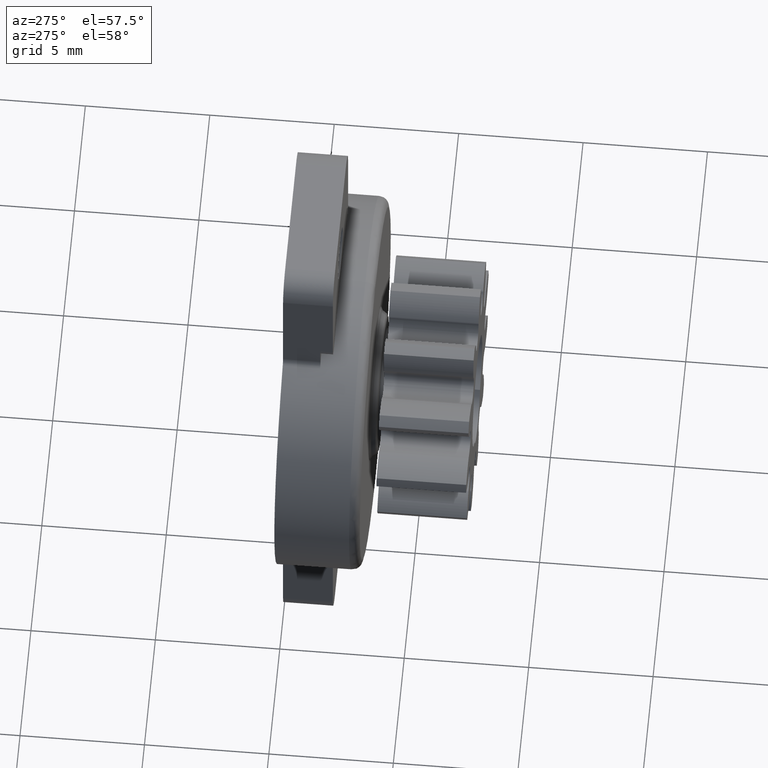
[diagram: clean part render]
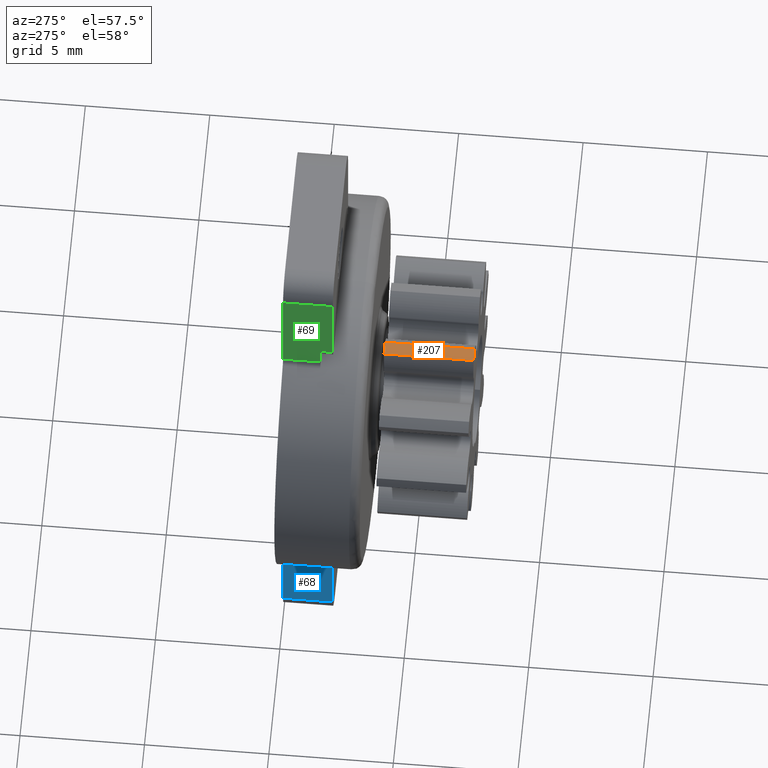
[diagram: same view with three faces highlighted in distinct colors, each labeled with its STEP entity id]
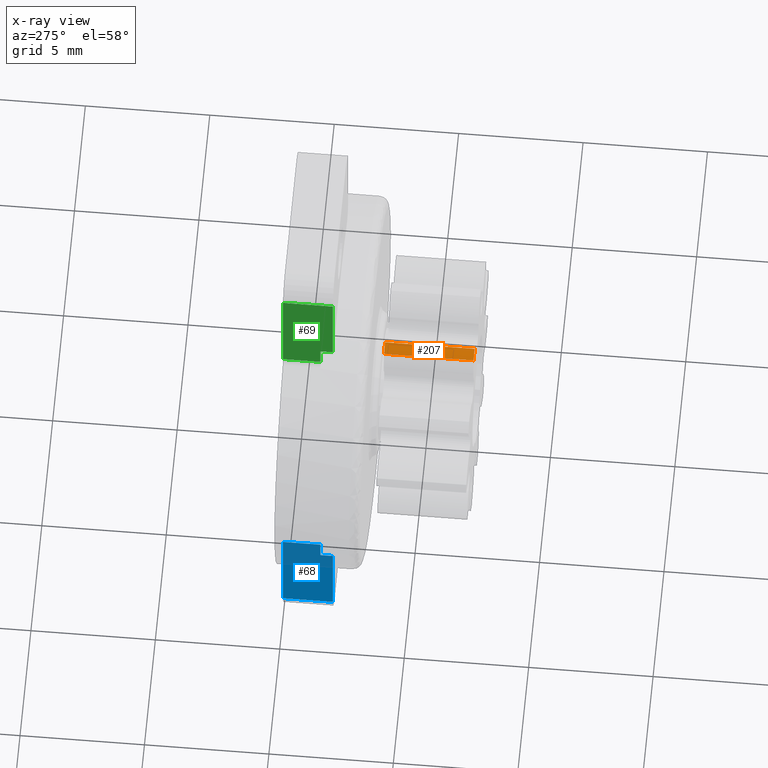
[diagram: x-ray of the same camera — body ghosted, the three highlighted faces saturated]
A machine part, auxiliary view with three faces highlighted in distinct colors.
The next image is the same camera in x-ray (body ghosted, the three faces saturated) — at least one of them is partly hidden behind the body in this view.
Their STEP definitions:

[orange] entity #207 — the highlighted cylindrical surface (partial cylindrical patch) has radius 5.2 mm, axis along (-0, -1, -0).
#207=ADVANCED_FACE('',(#2361),#2360,.T.);
#2360=CYLINDRICAL_SURFACE('',#7976,5.20000049591E+00);
#2361=FACE_OUTER_BOUND('',#7977,.T.);
#7973=CARTESIAN_POINT('',(0.00000000000E+00,-1.00390000000E+03,0.00000000000E+00));
#7974=DIRECTION('',(-0.00000000000E+00,-1.00000000000E+00,-0.00000000000E+00));
#7975=DIRECTION('',(-0.00000000000E+00,0.00000000000E+00,-1.00000000000E+00));
#7976=AXIS2_PLACEMENT_3D('',#7973,#7974,#7975);
#7977=EDGE_LOOP('',(#11176,#11177,#11178,#11179));
#11176=ORIENTED_EDGE('',*,*,#14782,.T.);
#11177=ORIENTED_EDGE('',*,*,#14781,.F.);
#11178=ORIENTED_EDGE('',*,*,#14783,.F.);
#11179=ORIENTED_EDGE('',*,*,#14784,.T.);
#14781=EDGE_CURVE('',#19563,#19556,#19570,.T.);
#14782=EDGE_CURVE('',#19576,#19556,#19577,.T.);
#14783=EDGE_CURVE('',#19583,#19563,#19584,.T.);
#14784=EDGE_CURVE('',#19583,#19576,#19590,.T.);
#19556=VERTEX_POINT('',#30831);
#19563=VERTEX_POINT('',#30835);
#19570=LINE('',#30839,#30840);
#19576=VERTEX_POINT('',#30842);
#19577=CIRCLE('',#30846,5.20000049591E+00);
#19583=VERTEX_POINT('',#30847);
#19584=CIRCLE('',#30851,5.20000049591E+00);
#19590=LINE('',#30852,#30853);
#30831=CARTESIAN_POINT('',(-1.69574860520E+00,-3.90000000000E+00,4.91573410850E+00));
#30835=CARTESIAN_POINT('',(-1.69574860520E+00,-7.50000000000E+00,4.91573410850E+00));
#30839=CARTESIAN_POINT('',(-1.69574860520E+00,-7.50000000000E+00,4.91573410850E+00));
#30840=VECTOR('',#30841,3.60000000000E+00);
#30841=DIRECTION('',(0.00000000000E+00,1.00000000000E+00,0.00000000000E+00));
#30842=CARTESIAN_POINT('',(-1.23109120000E+00,-3.90000000000E+00,5.05216980000E+00));
#30843=CARTESIAN_POINT('',(0.00000000000E+00,-3.90000000000E+00,0.00000000000E+00));
#30844=DIRECTION('',(0.00000000000E+00,-1.00000000000E+00,0.00000000000E+00));
#30845=DIRECTION('',(-0.00000000000E+00,-0.00000000000E+00,1.00000000000E+00));
#30846=AXIS2_PLACEMENT_3D('',#30843,#30844,#30845);
#30847=CARTESIAN_POINT('',(-1.23109120000E+00,-7.50000000000E+00,5.05216980000E+00));
#30848=CARTESIAN_POINT('',(0.00000000000E+00,-7.50000000000E+00,0.00000000000E+00));
#30849=DIRECTION('',(0.00000000000E+00,-1.00000000000E+00,0.00000000000E+00));
#30850=DIRECTION('',(-0.00000000000E+00,-0.00000000000E+00,1.00000000000E+00));
#30851=AXIS2_PLACEMENT_3D('',#30848,#30849,#30850);
#30852=CARTESIAN_POINT('',(-1.23109120000E+00,-7.50000000000E+00,5.05216980000E+00));
#30853=VECTOR('',#30854,3.60000000000E+00);
#30854=DIRECTION('',(0.00000000000E+00,1.00000000000E+00,0.00000000000E+00));

[blue] entity #68 — the highlighted planar face has unit normal (-1, 0, 0).
#68=ADVANCED_FACE('',(#971),#970,.T.);
#970=PLANE('',#7281);
#971=FACE_OUTER_BOUND('',#7282,.T.);
#7278=CARTESIAN_POINT('',(-3.50000000000E+00,-2.20000000000E+00,-1.14188244635E+01));
#7279=DIRECTION('',(-1.00000000000E+00,0.00000000000E+00,0.00000000000E+00));
#7280=DIRECTION('',(0.00000000000E+00,0.00000000000E+00,1.00000000000E+00));
#7281=AXIS2_PLACEMENT_3D('',#7278,#7279,#7280);
#7282=EDGE_LOOP('',(#10616,#10617,#10618,#10619,#10620,#10621));
#10616=ORIENTED_EDGE('',*,*,#14306,.F.);
#10617=ORIENTED_EDGE('',*,*,#14356,.T.);
#10618=ORIENTED_EDGE('',*,*,#14337,.T.);
#10619=ORIENTED_EDGE('',*,*,#14371,.T.);
#10620=ORIENTED_EDGE('',*,*,#14284,.F.);
#10621=ORIENTED_EDGE('',*,*,#14301,.F.);
#14284=EDGE_CURVE('',#16252,#16253,#16254,.T.);
#14301=EDGE_CURVE('',#16363,#16252,#16370,.T.);
#14306=EDGE_CURVE('',#16398,#16363,#16405,.T.);
#14337=EDGE_CURVE('',#16616,#16609,#16617,.T.);
#14356=EDGE_CURVE('',#16398,#16616,#16744,.T.);
#14371=EDGE_CURVE('',#16609,#16253,#16834,.T.);
#16252=VERTEX_POINT('',#28947);
#16253=VERTEX_POINT('',#28948);
#16254=LINE('',#28949,#28950);
#16363=VERTEX_POINT('',#29018);
#16370=LINE('',#29023,#29024);
#16398=VERTEX_POINT('',#29042);
#16405=LINE('',#29047,#29048);
#16609=VERTEX_POINT('',#29178);
#16616=VERTEX_POINT('',#29183);
#16617=LINE('',#29184,#29185);
#16744=LINE('',#29266,#29267);
#16834=LINE('',#29311,#29312);
#28947=CARTESIAN_POINT('',(-3.50000000000E+00,-2.00000000000E+00,-7.58711560000E+00));
#28948=CARTESIAN_POINT('',(-3.50000009537E+00,-2.00000000000E+00,-1.09999999476E+01));
#28949=CARTESIAN_POINT('',(-3.50000000000E+00,-2.00000000000E+00,-7.58711560000E+00));
#28950=VECTOR('',#28951,3.41288434764E+00);
#28951=DIRECTION('',(0.00000000000E+00,0.00000000000E+00,-1.00000000000E+00));
#29018=CARTESIAN_POINT('',(-3.50000000000E+00,-1.50000000000E+00,-7.58711560000E+00));
#29023=CARTESIAN_POINT('',(-3.50000000000E+00,-1.50000000000E+00,-7.58711560000E+00));
#29024=VECTOR('',#29025,5.00000000000E-01);
#29025=DIRECTION('',(0.00000000000E+00,-1.00000000000E+00,0.00000000000E+00));
#29042=CARTESIAN_POINT('',(-3.50000000000E+00,-1.50000000000E+00,-6.81175536540E+00));
#29047=CARTESIAN_POINT('',(-3.50000000000E+00,-1.50000000000E+00,-6.81175536540E+00));
#29048=VECTOR('',#29049,7.75360234605E-01);
#29049=DIRECTION('',(0.00000000000E+00,0.00000000000E+00,-1.00000000000E+00));
#29178=CARTESIAN_POINT('',(-3.50000000000E+00,0.00000000000E+00,-1.10000000000E+01));
#29183=CARTESIAN_POINT('',(-3.50000000000E+00,0.00000000000E+00,-6.81175536540E+00));
#29184=CARTESIAN_POINT('',(-3.50000000000E+00,0.00000000000E+00,-6.81175536540E+00));
#29185=VECTOR('',#29186,4.18824463460E+00);
#29186=DIRECTION('',(0.00000000000E+00,0.00000000000E+00,-1.00000000000E+00));
#29266=CARTESIAN_POINT('',(-3.50000000000E+00,-1.50000000000E+00,-6.81175536540E+00));
#29267=VECTOR('',#29268,1.50000000000E+00);
#29268=DIRECTION('',(0.00000000000E+00,1.00000000000E+00,0.00000000000E+00));
#29311=CARTESIAN_POINT('',(-3.50000000000E+00,0.00000000000E+00,-1.10000000000E+01));
#29312=VECTOR('',#29313,2.00000000000E+00);
#29313=DIRECTION('',(0.00000000000E+00,-1.00000000000E+00,0.00000000000E+00));

[green] entity #69 — the highlighted planar face has unit normal (-1, 0, 0).
#69=ADVANCED_FACE('',(#981),#980,.T.);
#980=PLANE('',#7286);
#981=FACE_OUTER_BOUND('',#7287,.T.);
#7283=CARTESIAN_POINT('',(-3.50000000000E+00,-2.20000000000E+00,6.39293089670E+00));
#7284=DIRECTION('',(-1.00000000000E+00,0.00000000000E+00,0.00000000000E+00));
#7285=DIRECTION('',(0.00000000000E+00,0.00000000000E+00,1.00000000000E+00));
#7286=AXIS2_PLACEMENT_3D('',#7283,#7284,#7285);
#7287=EDGE_LOOP('',(#10622,#10623,#10624,#10625,#10626,#10627));
#10622=ORIENTED_EDGE('',*,*,#14325,.T.);
#10623=ORIENTED_EDGE('',*,*,#14355,.T.);
#10624=ORIENTED_EDGE('',*,*,#14351,.F.);
#10625=ORIENTED_EDGE('',*,*,#14362,.T.);
#10626=ORIENTED_EDGE('',*,*,#14275,.F.);
#10627=ORIENTED_EDGE('',*,*,#14352,.F.);
#14275=EDGE_CURVE('',#16183,#16190,#16191,.T.);
#14325=EDGE_CURVE('',#16531,#16532,#16533,.T.);
#14351=EDGE_CURVE('',#16707,#16657,#16714,.T.);
#14352=EDGE_CURVE('',#16531,#16183,#16720,.T.);
#14355=EDGE_CURVE('',#16532,#16657,#16738,.T.);
#14362=EDGE_CURVE('',#16707,#16190,#16780,.T.);
#16183=VERTEX_POINT('',#28901);
#16190=VERTEX_POINT('',#28906);
#16191=LINE('',#28907,#28908);
#16531=VERTEX_POINT('',#29127);
#16532=VERTEX_POINT('',#29128);
#16533=LINE('',#29129,#29130);
#16657=VERTEX_POINT('',#29211);
#16707=VERTEX_POINT('',#29246);
#16714=LINE('',#29251,#29252);
#16720=LINE('',#29254,#29255);
#16738=LINE('',#29263,#29264);
#16780=LINE('',#29284,#29285);
#28901=CARTESIAN_POINT('',(-3.50000000000E+00,-2.00000000000E+00,1.10000000000E+01));
#28906=CARTESIAN_POINT('',(-3.50000000000E+00,-2.00000000000E+00,7.58711540000E+00));
#28907=CARTESIAN_POINT('',(-3.50000000000E+00,-2.00000000000E+00,1.10000000000E+01));
#28908=VECTOR('',#28909,3.41288460000E+00);
#28909=DIRECTION('',(0.00000000000E+00,0.00000000000E+00,-1.00000000000E+00));
#29127=CARTESIAN_POINT('',(-3.50000009537E+00,0.00000000000E+00,1.10000000524E+01));
#29128=CARTESIAN_POINT('',(-3.50000000000E+00,0.00000000000E+00,6.81175536540E+00));
#29129=CARTESIAN_POINT('',(-3.50000000000E+00,0.00000000000E+00,1.10000000524E+01));
#29130=VECTOR('',#29131,4.18824468696E+00);
#29131=DIRECTION('',(0.00000000000E+00,0.00000000000E+00,-1.00000000000E+00));
#29211=CARTESIAN_POINT('',(-3.50000000000E+00,-1.50000000000E+00,6.81175536540E+00));
#29246=CARTESIAN_POINT('',(-3.50000000000E+00,-1.50000000000E+00,7.58711540000E+00));
#29251=CARTESIAN_POINT('',(-3.50000000000E+00,-1.50000000000E+00,7.58711540000E+00));
#29252=VECTOR('',#29253,7.75360034605E-01);
#29253=DIRECTION('',(0.00000000000E+00,0.00000000000E+00,-1.00000000000E+00));
#29254=CARTESIAN_POINT('',(-3.50000009537E+00,0.00000000000E+00,1.10000000524E+01));
#29255=VECTOR('',#29256,2.00000000000E+00);
#29256=DIRECTION('',(0.00000000000E+00,-1.00000000000E+00,0.00000000000E+00));
#29263=CARTESIAN_POINT('',(-3.50000000000E+00,0.00000000000E+00,6.81175536540E+00));
#29264=VECTOR('',#29265,1.50000000000E+00);
#29265=DIRECTION('',(0.00000000000E+00,-1.00000000000E+00,0.00000000000E+00));
#29284=CARTESIAN_POINT('',(-3.50000000000E+00,-1.50000000000E+00,7.58711540000E+00));
#29285=VECTOR('',#29286,5.00000000000E-01);
#29286=DIRECTION('',(0.00000000000E+00,-1.00000000000E+00,0.00000000000E+00));